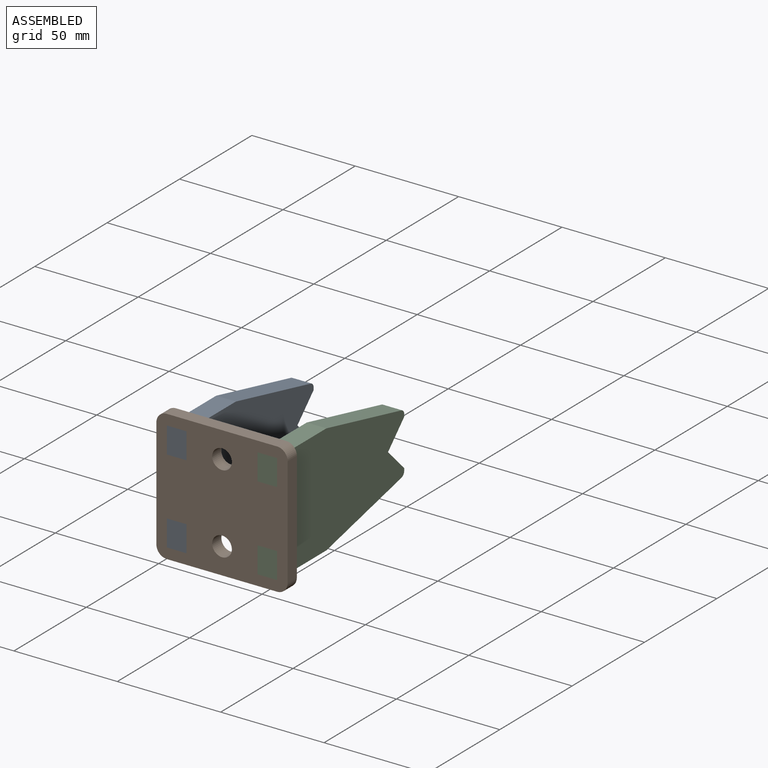
[diagram: assembled view]
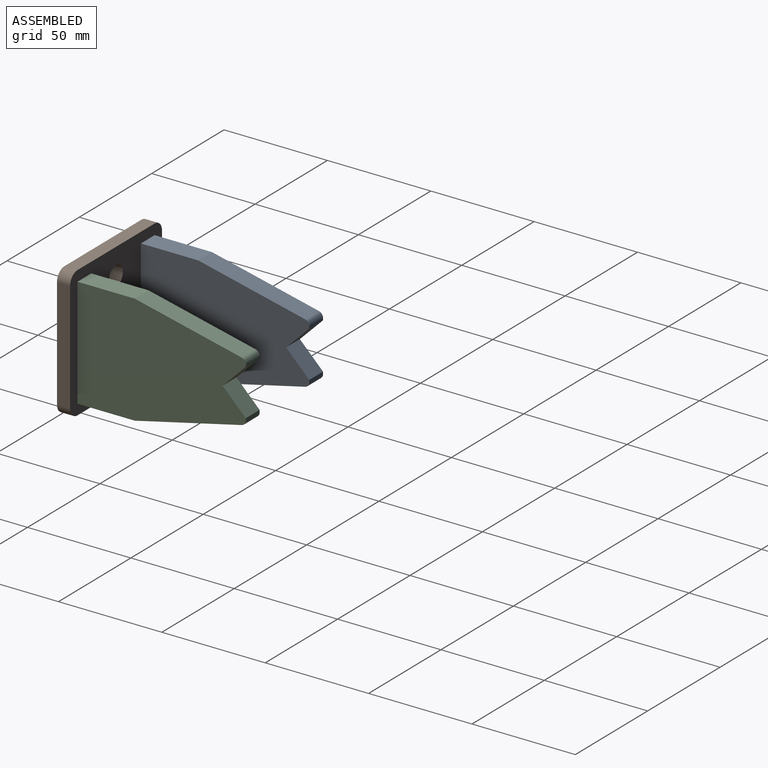
[diagram: assembled view, second angle]
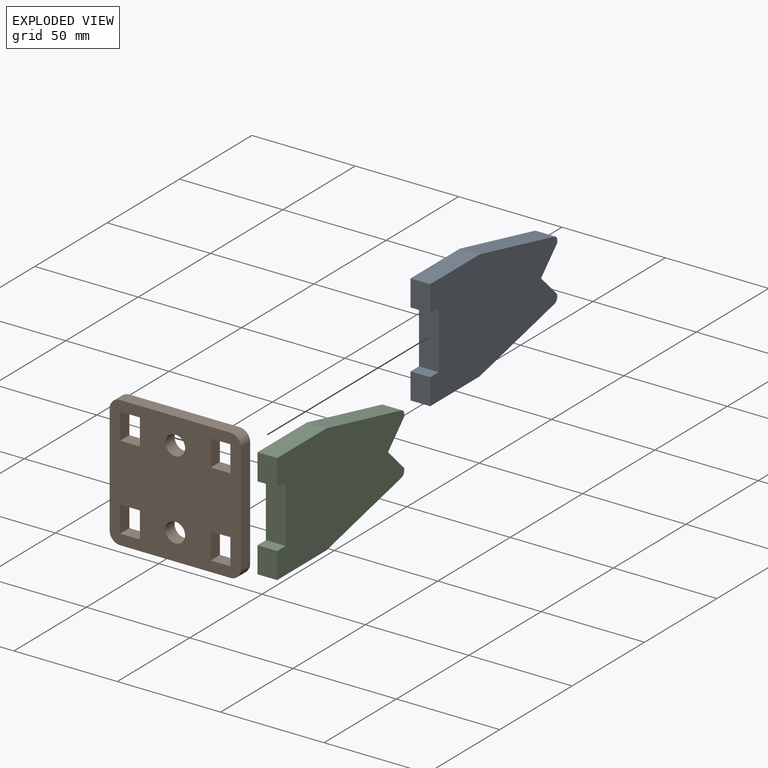
[diagram: exploded view]
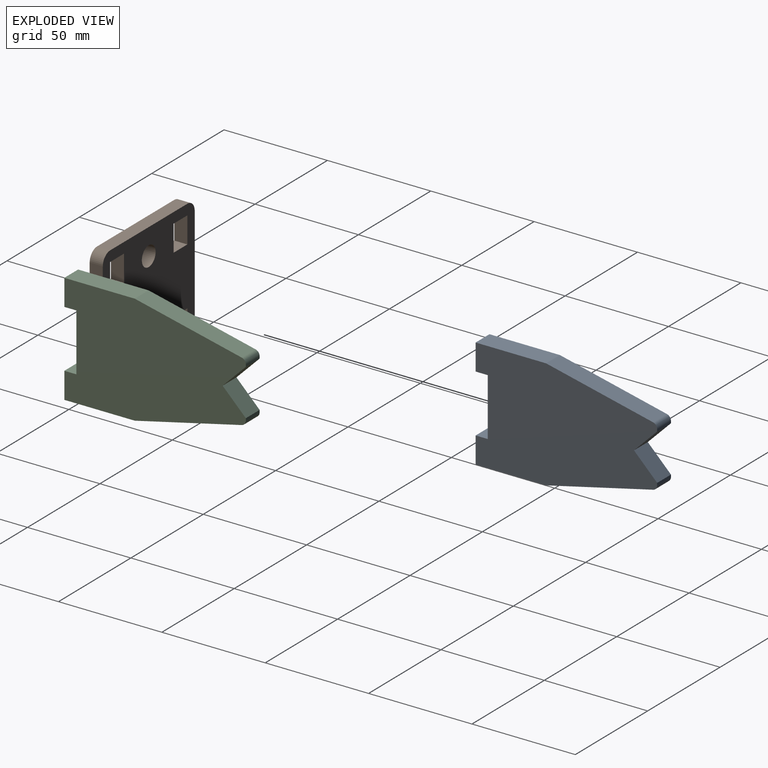
[diagram: exploded view, second angle]
ASSEMBLY  parts=3 mates=2
PART A: 17 faces, bbox 53.3x9.5x87.8 mm
  f0: plane 11.23x11.23mm, normal (-0.71,0,0.71), area 151.2mm2, adj f1,f14,f15,f16
  f1: plane 11.23x11.23mm, normal (0.71,0,0.71), area 151.2mm2, adj f0,f2,f15,f16
  f2: plane 9.53x1.04mm, normal (0,0,1), area 9.9mm2, adj f1,f3,f15,f16
  f3: cylinder r=2.54mm len=9.53mm, axis (0,1,0), area 32.5mm2, adj f2,f4,f15,f16
  f4: plane 51.77x11.93mm, normal (-0.97,0,0.22), area 506mm2, adj f3,f5,f15,f16
  f5: plane 34.07x9.53mm, normal (-1,0,0), area 324.5mm2, adj f4,f6,f15,f16
  f6: plane 12.7x9.53mm, normal (0,0,-1), area 121mm2, adj f5,f7,f15,f16
  f7: plane 9.53x5.84mm, normal (1,0,0), area 55.6mm2, adj f6,f8,f15,f16
  f8: plane 27.94x9.53mm, normal (0,0,-1), area 266.1mm2, adj f7,f9,f15,f16
  f9: plane 9.53x5.84mm, normal (-1,0,0), area 55.6mm2, adj f8,f10,f15,f16
  f10: plane 12.7x9.53mm, normal (0,0,-1), area 121mm2, adj f9,f11,f15,f16
  f11: plane 34.07x9.53mm, normal (1,0,0), area 324.5mm2, adj f10,f12,f15,f16
  f12: plane 51.77x11.93mm, normal (0.97,0,0.22), area 506mm2, adj f11,f13,f15,f16
  f13: cylinder r=2.54mm len=9.53mm, axis (0,1,0), area 32.5mm2, adj f12,f14,f15,f16
  f14: plane 9.53x1.04mm, normal (0,0,1), area 9.9mm2, adj f0,f13,f15,f16
  f15: plane 87.81x53.34mm, normal (0,-1,0), area 3727.5mm2, adj f0,f1,f2,f3,f4,f5,f6,f7
  f16: plane 87.81x53.34mm, normal (0,1,0), area 3727.5mm2, adj f0,f1,f2,f3,f4,f5,f6,f7
PART B: 28 faces, bbox 63.5x6.4x63.5 mm
  f0: plane 9.53x6.35mm, normal (0,0,1), area 60.5mm2, adj f1,f25,f26,f27
  f1: plane 12.7x6.35mm, normal (1,0,0), area 80.6mm2, adj f0,f2,f26,f27
  f2: plane 9.53x6.35mm, normal (0,0,-1), area 60.5mm2, adj f1,f25,f26,f27
  f3: plane 9.53x6.35mm, normal (0,0,1), area 60.5mm2, adj f4,f19,f26,f27
  f4: plane 12.7x6.35mm, normal (1,0,0), area 80.6mm2, adj f3,f5,f26,f27
  f5: plane 9.53x6.35mm, normal (0,0,-1), area 60.5mm2, adj f4,f19,f26,f27
  f6: plane 53.34x6.35mm, normal (1,0,0), area 338.7mm2, adj f7,f20,f26,f27
  f7: cylinder r=5.08mm len=6.35mm, axis (0,1,0), area 50.7mm2, adj f6,f8,f26,f27
  f8: plane 53.34x6.35mm, normal (0,0,1), area 338.7mm2, adj f7,f9,f26,f27
  f9: cylinder r=5.08mm len=6.35mm, axis (0,1,0), area 50.7mm2, adj f8,f10,f26,f27
  f10: plane 53.34x6.35mm, normal (-1,0,0), area 338.7mm2, adj f9,f11,f26,f27
  f11: cylinder r=5.08mm len=6.35mm, axis (0,1,0), area 50.7mm2, adj f10,f12,f26,f27
  f12: plane 53.34x6.35mm, normal (0,0,-1), area 338.7mm2, adj f11,f20,f26,f27
  f13: plane 12.7x6.35mm, normal (1,0,0), area 80.6mm2, adj f14,f23,f26,f27
  f14: plane 9.53x6.35mm, normal (0,0,-1), area 60.5mm2, adj f13,f15,f26,f27
  f15: plane 12.7x6.35mm, normal (-1,0,0), area 80.6mm2, adj f14,f23,f26,f27
  f16: plane 12.7x6.35mm, normal (1,0,0), area 80.6mm2, adj f17,f24,f26,f27
  f17: plane 9.53x6.35mm, normal (0,0,-1), area 60.5mm2, adj f16,f18,f26,f27
  f18: plane 12.7x6.35mm, normal (-1,0,0), area 80.6mm2, adj f17,f24,f26,f27
  f19: plane 12.7x6.35mm, normal (-1,0,0), area 80.6mm2, adj f3,f5,f26,f27
  f20: cylinder r=5.08mm len=6.35mm, axis (0,1,0), area 50.7mm2, adj f6,f12,f26,f27
  f21: cylinder r=4.76mm len=9.53mm, axis (0,1,0), area 190mm2, adj f26,f27
  f22: cylinder r=4.76mm len=9.53mm, axis (0,1,0), area 190mm2, adj f26,f27
  f23: plane 9.53x6.35mm, normal (0,0,1), area 60.5mm2, adj f13,f15,f26,f27
  f24: plane 9.53x6.35mm, normal (0,0,1), area 60.5mm2, adj f16,f18,f26,f27
  f25: plane 12.7x6.35mm, normal (-1,0,0), area 80.6mm2, adj f0,f2,f26,f27
  f26: plane 63.5x63.5mm, normal (0,-1,0), area 3383.7mm2, adj f0,f1,f2,f3,f4,f5,f6,f7
  f27: plane 63.5x63.5mm, normal (0,1,0), area 3383.7mm2, adj f0,f1,f2,f3,f4,f5,f6,f7
PART C: same geometry as A
PLACE A rot(axis=(-0.58,0.58,0.58),120deg) t=(-97.41,-13.97,-6.04)mm
PLACE B t=(-70.74,-41.69,-6.04)mm fixed
PLACE C rot(axis=(-0.58,0.58,0.58),120deg) t=(-53.59,-13.97,-6.04)mm
MATE fastened A.f6 <-> B.f26  axis (0,-1,0) through (-92.65,-48.04,14.28)mm
MATE fastened C.f10 <-> B.f26  axis (0,-1,0) through (-48.83,-48.04,-26.36)mm
